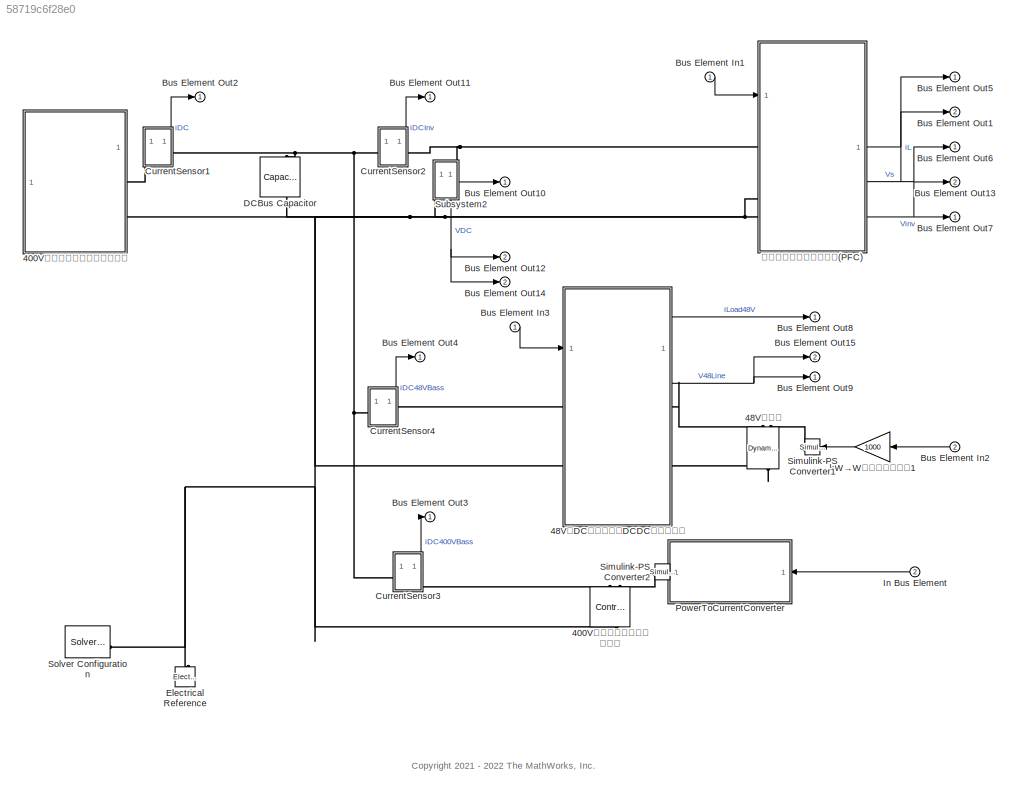
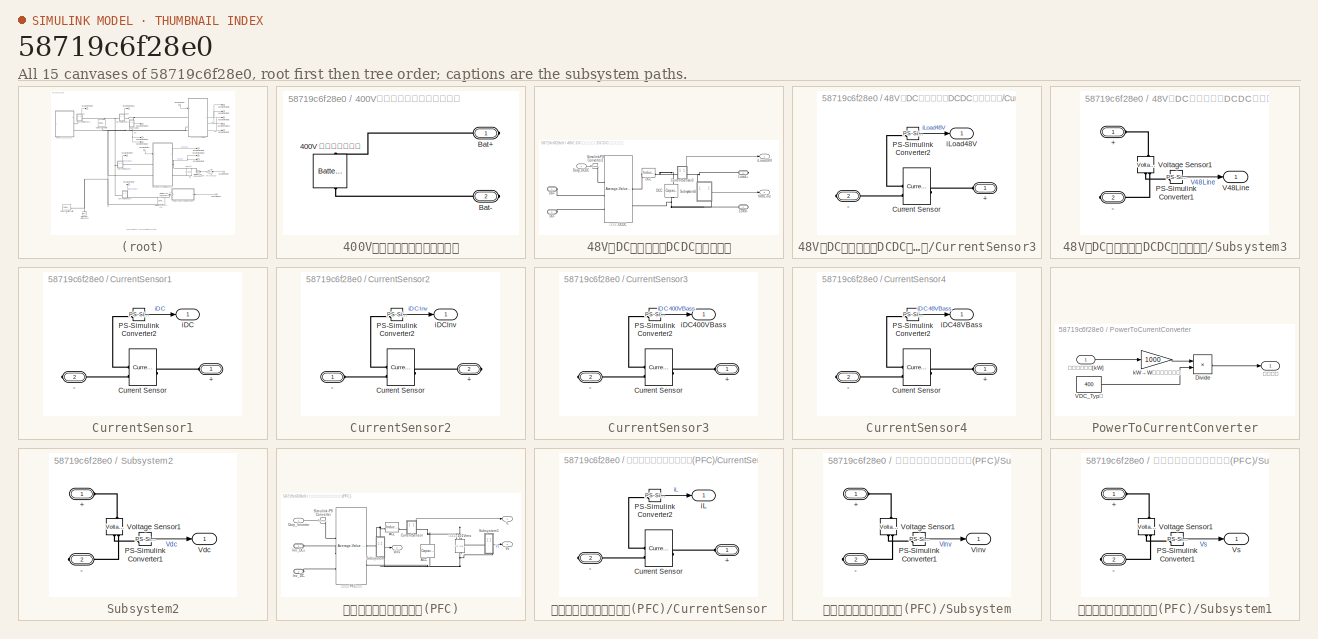
[diagram: thumbnail index - all 15 canvases of the model, root first then tree order]
MODEL slx_58719c6f28e0
KIND model
BLOCK [SubSystem] 400Vリチウムイオンバッテリー
BLOCK [Reference] 400Vリチウムイオンバッテリー/400V 理想特性蓄電池  REF=batteryecm_lib/Battery
  NameLocation = left
  SourceBlock = batteryecm_lib/Battery
  SourceType = Battery
BLOCK [PMIOPort] 400Vリチウムイオンバッテリー/Bat+
  Side = Right
BLOCK [PMIOPort] 400Vリチウムイオンバッテリー/Bat-
  Port = 2
  Side = Right
BLOCK [Reference] 400V系負荷を模擬する 電流源  REF=fl_lib/Electrical/Electrical Sources/Controlled Current
Source
  NameLocation = left
  SourceBlock = fl_lib/Electrical/Electrical Sources/Controlled Current\nSource
  SourceType = Controlled Current\nSource
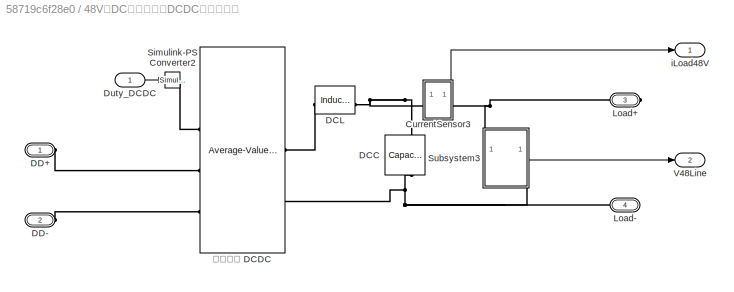
BLOCK [SubSystem] 48V系DC負荷供給用DCDCコンバータ
BLOCK [SubSystem] 48V系DC負荷供給用DCDCコンバータ/CurrentSensor3
  PortSchema = {"entries":[{"content":{"sides":[{"content":{"connectorIds":["LConn1"]},"type":"ConnectorPlacement.EquallySpacedRectSide","uuid":"7286f59e-cee0-499d-832c-cf6f33a1b017"},{"content":{"connectorIds":["RConn1"],"side":"RIGHT"},"type":"ConnectorPlacement.EquallySpacedRectSide","uuid":"6a983281-a6bc-4a57-a5ba-c4da9a8828f4"},{"content":{"connectorIds":["Out1"],"side":"TOP"},"type":"ConnectorPlacement.Equ...<+251ch>  <repeated x6 — deduplicated; at blocks: CurrentSensor3, CurrentSensor1, CurrentSensor2, CurrentSensor4, CurrentSensor>
BLOCK [PMIOPort] 48V系DC負荷供給用DCDCコンバータ/CurrentSensor3/+
  Side = Left
BLOCK [PMIOPort] 48V系DC負荷供給用DCDCコンバータ/CurrentSensor3/-
  Port = 2
  Side = Right
BLOCK [Reference] 48V系DC負荷供給用DCDCコンバータ/CurrentSensor3/Current Sensor  REF=fl_lib/Electrical/Electrical Sensors/Current Sensor
  NameLocation = top
  SourceBlock = fl_lib/Electrical/Electrical Sensors/Current Sensor
  SourceType = Current Sensor
BLOCK [Reference] 48V系DC負荷供給用DCDCコンバータ/CurrentSensor3/PS-Simulink Converter2  REF=nesl_utility/PS-Simulink
Converter
  SourceBlock = nesl_utility/PS-Simulink\nConverter
  SourceType = PS-Simulink\nConverter
BLOCK [Outport] 48V系DC負荷供給用DCDCコンバータ/CurrentSensor3/iLoad48V
BLOCK [Reference] 48V系DC負荷供給用DCDCコンバータ/DCC  REF=ee_lib/Passive/Capacitor
  NameLocation = left
  SourceBlock = ee_lib/Passive/Capacitor
  SourceType = Capacitor
BLOCK [Reference] 48V系DC負荷供給用DCDCコンバータ/DCL  REF=ee_lib/Passive/Inductor
  SourceBlock = ee_lib/Passive/Inductor
  SourceType = Inductor
BLOCK [PMIOPort] 48V系DC負荷供給用DCDCコンバータ/DD+
  Side = Left
BLOCK [PMIOPort] 48V系DC負荷供給用DCDCコンバータ/DD-
  Port = 2
  Side = Left
BLOCK [Inport] 48V系DC負荷供給用DCDCコンバータ/Duty_DCDC
BLOCK [PMIOPort] 48V系DC負荷供給用DCDCコンバータ/Load+
  NameLocation = top
  Port = 3
  Side = Right
BLOCK [PMIOPort] 48V系DC負荷供給用DCDCコンバータ/Load-
  NameLocation = top
  Port = 4
  Side = Right
BLOCK [Reference] 48V系DC負荷供給用DCDCコンバータ/Simulink-PS Converter2  REF=nesl_utility/Simulink-PS
Converter
  SourceBlock = nesl_utility/Simulink-PS\nConverter
  SourceType = Simulink-PS\nConverter
BLOCK [SubSystem] 48V系DC負荷供給用DCDCコンバータ/Subsystem3
  PortSchema = {"entries":[{"content":{"sides":[{"content":{"connectorIds":[]},"type":"ConnectorPlacement.EquallySpacedRectSide","uuid":"7286f59e-cee0-499d-832c-cf6f33a1b017"},{"content":{"connectorIds":["Out1"],"side":"RIGHT"},"type":"ConnectorPlacement.EquallySpacedRectSide","uuid":"6a983281-a6bc-4a57-a5ba-c4da9a8828f4"},{"content":{"connectorIds":["LConn1"],"side":"TOP"},"type":"ConnectorPlacement.EquallySpac...<+395ch>  <repeated x3 — deduplicated; at blocks: Subsystem3, Subsystem, Subsystem1>
BLOCK [PMIOPort] 48V系DC負荷供給用DCDCコンバータ/Subsystem3/+
  Side = Left
BLOCK [PMIOPort] 48V系DC負荷供給用DCDCコンバータ/Subsystem3/-
  NameLocation = top
  Port = 2
  Side = Right
BLOCK [Reference] 48V系DC負荷供給用DCDCコンバータ/Subsystem3/PS-Simulink Converter1  REF=nesl_utility/PS-Simulink
Converter
  SourceBlock = nesl_utility/PS-Simulink\nConverter
  SourceType = PS-Simulink\nConverter
BLOCK [Outport] 48V系DC負荷供給用DCDCコンバータ/Subsystem3/V48Line
BLOCK [Reference] 48V系DC負荷供給用DCDCコンバータ/Subsystem3/Voltage Sensor1  REF=fl_lib/Electrical/Electrical Sensors/Voltage Sensor
  NameLocation = right
  SourceBlock = fl_lib/Electrical/Electrical Sensors/Voltage Sensor
  SourceType = Voltage Sensor
BLOCK [Outport] 48V系DC負荷供給用DCDCコンバータ/V48Line
  Port = 2
BLOCK [Outport] 48V系DC負荷供給用DCDCコンバータ/iLoad48V
BLOCK [Reference] 48V系DC負荷供給用DCDCコンバータ/平均電圧 DCDC  REF=ee_lib/Semiconductors &
Converters/Converters/Average-Value
Chopper
  SourceBlock = ee_lib/Semiconductors &\nConverters/Converters/Average-Value\nChopper
  SourceType = Average-Value\nChopper
BLOCK [Reference] 48V系負荷  REF=ee_lib/Passive/Dynamic Load
  SourceBlock = ee_lib/Passive/Dynamic Load
  SourceType = Dynamic Load
BLOCK [Inport] Bus Element In1
BLOCK [Inport] Bus Element In2
  Port = 2
BLOCK [Inport] Bus Element In3
BLOCK [Outport] Bus Element Out1
  Port = 2
BLOCK [Outport] Bus Element Out10
BLOCK [Outport] Bus Element Out11
BLOCK [Outport] Bus Element Out12
  Port = 2
BLOCK [Outport] Bus Element Out13
  Port = 2
BLOCK [Outport] Bus Element Out14
  Port = 2
BLOCK [Outport] Bus Element Out15
  Port = 2
BLOCK [Outport] Bus Element Out2
BLOCK [Outport] Bus Element Out3
BLOCK [Outport] Bus Element Out4
BLOCK [Outport] Bus Element Out5
BLOCK [Outport] Bus Element Out6
BLOCK [Outport] Bus Element Out7
BLOCK [Outport] Bus Element Out8
BLOCK [Outport] Bus Element Out9
BLOCK [SubSystem] CurrentSensor1
BLOCK [PMIOPort] CurrentSensor1/+
  Side = Left
BLOCK [PMIOPort] CurrentSensor1/-
  Port = 2
  Side = Right
BLOCK [Reference] CurrentSensor1/Current Sensor  REF=fl_lib/Electrical/Electrical Sensors/Current Sensor
  NameLocation = top
  SourceBlock = fl_lib/Electrical/Electrical Sensors/Current Sensor
  SourceType = Current Sensor
BLOCK [Reference] CurrentSensor1/PS-Simulink Converter2  REF=nesl_utility/PS-Simulink
Converter
  SourceBlock = nesl_utility/PS-Simulink\nConverter
  SourceType = PS-Simulink\nConverter
BLOCK [Outport] CurrentSensor1/iDC
BLOCK [SubSystem] CurrentSensor2
BLOCK [PMIOPort] CurrentSensor2/+
  Port = 2
  Side = Right
BLOCK [PMIOPort] CurrentSensor2/-
  Side = Left
BLOCK [Reference] CurrentSensor2/Current Sensor  REF=fl_lib/Electrical/Electrical Sensors/Current Sensor
  NameLocation = top
  SourceBlock = fl_lib/Electrical/Electrical Sensors/Current Sensor
  SourceType = Current Sensor
BLOCK [Reference] CurrentSensor2/PS-Simulink Converter2  REF=nesl_utility/PS-Simulink
Converter
  SourceBlock = nesl_utility/PS-Simulink\nConverter
  SourceType = PS-Simulink\nConverter
BLOCK [Outport] CurrentSensor2/iDCInv
BLOCK [SubSystem] CurrentSensor3
BLOCK [PMIOPort] CurrentSensor3/+
  Side = Left
BLOCK [PMIOPort] CurrentSensor3/-
  Port = 2
  Side = Right
BLOCK [Reference] CurrentSensor3/Current Sensor  REF=fl_lib/Electrical/Electrical Sensors/Current Sensor
  NameLocation = top
  SourceBlock = fl_lib/Electrical/Electrical Sensors/Current Sensor
  SourceType = Current Sensor
BLOCK [Reference] CurrentSensor3/PS-Simulink Converter2  REF=nesl_utility/PS-Simulink
Converter
  SourceBlock = nesl_utility/PS-Simulink\nConverter
  SourceType = PS-Simulink\nConverter
BLOCK [Outport] CurrentSensor3/iDC400VBass
BLOCK [SubSystem] CurrentSensor4
BLOCK [PMIOPort] CurrentSensor4/+
  Side = Left
BLOCK [PMIOPort] CurrentSensor4/-
  Port = 2
  Side = Right
BLOCK [Reference] CurrentSensor4/Current Sensor  REF=fl_lib/Electrical/Electrical Sensors/Current Sensor
  NameLocation = top
  SourceBlock = fl_lib/Electrical/Electrical Sensors/Current Sensor
  SourceType = Current Sensor
BLOCK [Reference] CurrentSensor4/PS-Simulink Converter2  REF=nesl_utility/PS-Simulink
Converter
  SourceBlock = nesl_utility/PS-Simulink\nConverter
  SourceType = PS-Simulink\nConverter
BLOCK [Outport] CurrentSensor4/iDC48VBass
BLOCK [Reference] DCBus Capacitor  REF=ee_lib/Passive/Capacitor
  NameLocation = left
  SourceBlock = ee_lib/Passive/Capacitor
  SourceType = Capacitor
BLOCK [Reference] Electrical Reference  REF=fl_lib/Electrical/Electrical Elements/Electrical Reference
  SourceBlock = fl_lib/Electrical/Electrical Elements/Electrical Reference
  SourceType = Electrical Reference
BLOCK [Inport] In Bus Element
  Port = 2
BLOCK [SubSystem] PowerToCurrentConverter
BLOCK [Product] PowerToCurrentConverter/Divide
  Inputs = */
BLOCK [Constant] PowerToCurrentConverter/VDC_Typ値
  Value = 400
BLOCK [Gain] PowerToCurrentConverter/kW→W単位変換ゲイン
  Gain = 1000
  NameLocation = top
BLOCK [Inport] PowerToCurrentConverter/消費負荷電力[kW]
  NameLocation = top
BLOCK [Outport] PowerToCurrentConverter/負荷電流
  NameLocation = top
BLOCK [Reference] Simulink-PS Converter1  REF=nesl_utility/Simulink-PS
Converter
  NameLocation = top
  SourceBlock = nesl_utility/Simulink-PS\nConverter
  SourceType = Simulink-PS\nConverter
BLOCK [Reference] Simulink-PS Converter2  REF=nesl_utility/Simulink-PS
Converter
  NameLocation = top
  SourceBlock = nesl_utility/Simulink-PS\nConverter
  SourceType = Simulink-PS\nConverter
BLOCK [Reference] Solver Configuration  REF=nesl_utility/Solver
Configuration
  SourceBlock = nesl_utility/Solver\nConfiguration
  SourceType = Solver\nConfiguration
BLOCK [SubSystem] Subsystem2
  PortSchema = {"entries":[{"content":{"sides":[{"content":{"connectorIds":["Out1"]},"type":"ConnectorPlacement.EquallySpacedRectSide","uuid":"7286f59e-cee0-499d-832c-cf6f33a1b017"},{"content":{"connectorIds":[],"side":"RIGHT"},"type":"ConnectorPlacement.EquallySpacedRectSide","uuid":"6a983281-a6bc-4a57-a5ba-c4da9a8828f4"},{"content":{"connectorIds":["LConn1"],"side":"TOP"},"type":"ConnectorPlacement.EquallySpac...<+395ch>
BLOCK [PMIOPort] Subsystem2/+
  Side = Left
BLOCK [PMIOPort] Subsystem2/-
  NameLocation = top
  Port = 2
  Side = Right
BLOCK [Reference] Subsystem2/PS-Simulink Converter1  REF=nesl_utility/PS-Simulink
Converter
  SourceBlock = nesl_utility/PS-Simulink\nConverter
  SourceType = PS-Simulink\nConverter
BLOCK [Outport] Subsystem2/Vdc
BLOCK [Reference] Subsystem2/Voltage Sensor1  REF=fl_lib/Electrical/Electrical Sensors/Voltage Sensor
  NameLocation = right
  SourceBlock = fl_lib/Electrical/Electrical Sensors/Voltage Sensor
  SourceType = Voltage Sensor
BLOCK [Gain] kW→W単位変換ゲイン1
  Gain = 1000
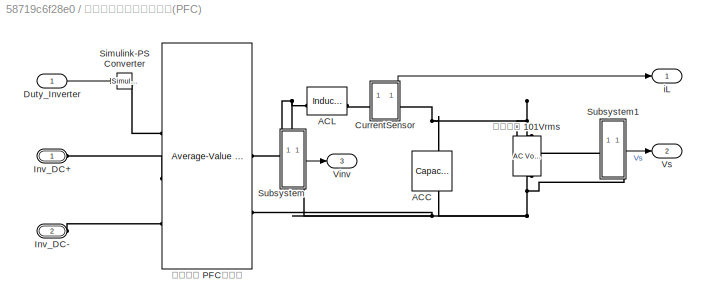
BLOCK [SubSystem] オンボードチャージャー(PFC)
BLOCK [Reference] オンボードチャージャー(PFC)/ACC  REF=ee_lib/Passive/Capacitor
  NameLocation = right
  SourceBlock = ee_lib/Passive/Capacitor
  SourceType = Capacitor
BLOCK [Reference] オンボードチャージャー(PFC)/ACL  REF=ee_lib/Passive/Inductor
  SourceBlock = ee_lib/Passive/Inductor
  SourceType = Inductor
BLOCK [SubSystem] オンボードチャージャー(PFC)/CurrentSensor
BLOCK [PMIOPort] オンボードチャージャー(PFC)/CurrentSensor/+
  Side = Left
BLOCK [PMIOPort] オンボードチャージャー(PFC)/CurrentSensor/-
  Port = 2
  Side = Right
BLOCK [Reference] オンボードチャージャー(PFC)/CurrentSensor/Current Sensor  REF=fl_lib/Electrical/Electrical Sensors/Current Sensor
  NameLocation = top
  SourceBlock = fl_lib/Electrical/Electrical Sensors/Current Sensor
  SourceType = Current Sensor
BLOCK [Reference] オンボードチャージャー(PFC)/CurrentSensor/PS-Simulink Converter2  REF=nesl_utility/PS-Simulink
Converter
  SourceBlock = nesl_utility/PS-Simulink\nConverter
  SourceType = PS-Simulink\nConverter
BLOCK [Outport] オンボードチャージャー(PFC)/CurrentSensor/iL
BLOCK [Inport] オンボードチャージャー(PFC)/Duty_Inverter
BLOCK [PMIOPort] オンボードチャージャー(PFC)/Inv_DC+
  Side = Left
BLOCK [PMIOPort] オンボードチャージャー(PFC)/Inv_DC-
  Port = 2
  Side = Left
BLOCK [Reference] オンボードチャージャー(PFC)/Simulink-PS Converter  REF=nesl_utility/Simulink-PS
Converter
  SourceBlock = nesl_utility/Simulink-PS\nConverter
  SourceType = Simulink-PS\nConverter
BLOCK [SubSystem] オンボードチャージャー(PFC)/Subsystem
BLOCK [PMIOPort] オンボードチャージャー(PFC)/Subsystem/+
  Side = Left
BLOCK [PMIOPort] オンボードチャージャー(PFC)/Subsystem/-
  NameLocation = top
  Port = 2
  Side = Right
BLOCK [Reference] オンボードチャージャー(PFC)/Subsystem/PS-Simulink Converter1  REF=nesl_utility/PS-Simulink
Converter
  SourceBlock = nesl_utility/PS-Simulink\nConverter
  SourceType = PS-Simulink\nConverter
BLOCK [Outport] オンボードチャージャー(PFC)/Subsystem/Vinv
BLOCK [Reference] オンボードチャージャー(PFC)/Subsystem/Voltage Sensor1  REF=fl_lib/Electrical/Electrical Sensors/Voltage Sensor
  NameLocation = right
  SourceBlock = fl_lib/Electrical/Electrical Sensors/Voltage Sensor
  SourceType = Voltage Sensor
BLOCK [SubSystem] オンボードチャージャー(PFC)/Subsystem1
BLOCK [PMIOPort] オンボードチャージャー(PFC)/Subsystem1/+
  Side = Left
BLOCK [PMIOPort] オンボードチャージャー(PFC)/Subsystem1/-
  NameLocation = top
  Port = 2
  Side = Right
BLOCK [Reference] オンボードチャージャー(PFC)/Subsystem1/PS-Simulink Converter1  REF=nesl_utility/PS-Simulink
Converter
  SourceBlock = nesl_utility/PS-Simulink\nConverter
  SourceType = PS-Simulink\nConverter
BLOCK [Reference] オンボードチャージャー(PFC)/Subsystem1/Voltage Sensor1  REF=fl_lib/Electrical/Electrical Sensors/Voltage Sensor
  NameLocation = right
  SourceBlock = fl_lib/Electrical/Electrical Sensors/Voltage Sensor
  SourceType = Voltage Sensor
BLOCK [Outport] オンボードチャージャー(PFC)/Subsystem1/Vs
BLOCK [Outport] オンボードチャージャー(PFC)/Vinv
  Port = 3
BLOCK [Outport] オンボードチャージャー(PFC)/Vs
  Port = 2
BLOCK [Outport] オンボードチャージャー(PFC)/iL
BLOCK [Reference] オンボードチャージャー(PFC)/平均電圧 PFCモデル  REF=ee_lib/Semiconductors &
Converters/Converters/Average-Value
Chopper
  SourceBlock = ee_lib/Semiconductors &\nConverters/Converters/Average-Value\nChopper
  SourceType = Average-Value\nChopper
BLOCK [Reference] オンボードチャージャー(PFC)/系統電圧 101Vrms  REF=fl_lib/Electrical/Electrical Sources/AC Voltage Source
  NameLocation = right
  SourceBlock = fl_lib/Electrical/Electrical Sources/AC Voltage Source
  SourceType = AC Voltage Source
ANNOTATION (root): <copyright redacted>
LINE 48V系DC負荷供給用DCDCコンバータ/CurrentSensor3/PS-Simulink Converter2:1 -> 48V系DC負荷供給用DCDCコンバータ/CurrentSensor3/iLoad48V:1
LINE 48V系DC負荷供給用DCDCコンバータ/CurrentSensor3:1 -> 48V系DC負荷供給用DCDCコンバータ/iLoad48V:1
LINE 48V系DC負荷供給用DCDCコンバータ/Duty_DCDC:1 -> 48V系DC負荷供給用DCDCコンバータ/Simulink-PS Converter2:1
LINE 48V系DC負荷供給用DCDCコンバータ/Subsystem3/PS-Simulink Converter1:1 -> 48V系DC負荷供給用DCDCコンバータ/Subsystem3/V48Line:1
LINE 48V系DC負荷供給用DCDCコンバータ/Subsystem3:1 -> 48V系DC負荷供給用DCDCコンバータ/V48Line:1
LINE 48V系DC負荷供給用DCDCコンバータ:1 -> Bus Element Out8:1
NET 48V系DC負荷供給用DCDCコンバータ:2 -> Bus Element Out15:1, Bus Element Out9:1
LINE Bus Element In1:1 -> オンボードチャージャー(PFC):1
LINE Bus Element In2:1 -> kW→W単位変換ゲイン1:1
LINE Bus Element In3:1 -> 48V系DC負荷供給用DCDCコンバータ:1
LINE CurrentSensor1/PS-Simulink Converter2:1 -> CurrentSensor1/iDC:1
LINE CurrentSensor1:1 -> Bus Element Out2:1
LINE CurrentSensor2/PS-Simulink Converter2:1 -> CurrentSensor2/iDCInv:1
LINE CurrentSensor2:1 -> Bus Element Out11:1
LINE CurrentSensor3/PS-Simulink Converter2:1 -> CurrentSensor3/iDC400VBass:1
LINE CurrentSensor3:1 -> Bus Element Out3:1
LINE CurrentSensor4/PS-Simulink Converter2:1 -> CurrentSensor4/iDC48VBass:1
LINE CurrentSensor4:1 -> Bus Element Out4:1
LINE In Bus Element:1 -> PowerToCurrentConverter:1
LINE PowerToCurrentConverter/Divide:1 -> PowerToCurrentConverter/負荷電流:1
LINE PowerToCurrentConverter/VDC_Typ値:1 -> PowerToCurrentConverter/Divide:2
LINE PowerToCurrentConverter/kW→W単位変換ゲイン:1 -> PowerToCurrentConverter/Divide:1
LINE PowerToCurrentConverter/消費負荷電力[kW]:1 -> PowerToCurrentConverter/kW→W単位変換ゲイン:1
LINE PowerToCurrentConverter:1 -> Simulink-PS Converter2:1
LINE Subsystem2/PS-Simulink Converter1:1 -> Subsystem2/Vdc:1
NET Subsystem2:1 -> Bus Element Out10:1, Bus Element Out12:1, Bus Element Out14:1
LINE kW→W単位変換ゲイン1:1 -> Simulink-PS Converter1:1
LINE オンボードチャージャー(PFC)/CurrentSensor/PS-Simulink Converter2:1 -> オンボードチャージャー(PFC)/CurrentSensor/iL:1
LINE オンボードチャージャー(PFC)/CurrentSensor:1 -> オンボードチャージャー(PFC)/iL:1
LINE オンボードチャージャー(PFC)/Duty_Inverter:1 -> オンボードチャージャー(PFC)/Simulink-PS Converter:1
LINE オンボードチャージャー(PFC)/Subsystem/PS-Simulink Converter1:1 -> オンボードチャージャー(PFC)/Subsystem/Vinv:1
LINE オンボードチャージャー(PFC)/Subsystem1/PS-Simulink Converter1:1 -> オンボードチャージャー(PFC)/Subsystem1/Vs:1
LINE オンボードチャージャー(PFC)/Subsystem1:1 -> オンボードチャージャー(PFC)/Vs:1
LINE オンボードチャージャー(PFC)/Subsystem:1 -> オンボードチャージャー(PFC)/Vinv:1
NET オンボードチャージャー(PFC):1 -> Bus Element Out1:1, Bus Element Out5:1
NET オンボードチャージャー(PFC):2 -> Bus Element Out13:1, Bus Element Out6:1
LINE オンボードチャージャー(PFC):3 -> Bus Element Out7:1
PLINE 400Vリチウムイオンバッテリー/400V 理想特性蓄電池:LConn1 -- 400Vリチウムイオンバッテリー/Bat+:RConn1
PLINE 400Vリチウムイオンバッテリー/400V 理想特性蓄電池:RConn1 -- 400Vリチウムイオンバッテリー/Bat-:RConn1
PLINE 400Vリチウムイオンバッテリー:RConn1 -- CurrentSensor1:LConn1
PNET net1: 400Vリチウムイオンバッテリー:RConn2 -- 400V系負荷を模擬する 電流源:LConn1 -- 48V系DC負荷供給用DCDCコンバータ:LConn2 -- DCBus Capacitor:RConn1 -- Electrical Reference:LConn1 -- Solver Configuration:RConn1 -- Subsystem2:RConn1 -- オンボードチャージャー(PFC):LConn2
PLINE 400V系負荷を模擬する 電流源:RConn1 -- Simulink-PS Converter2:RConn1
PLINE 400V系負荷を模擬する 電流源:RConn2 -- CurrentSensor3:RConn1
PLINE 48V系DC負荷供給用DCDCコンバータ/CurrentSensor3/+:RConn1 -- 48V系DC負荷供給用DCDCコンバータ/CurrentSensor3/Current Sensor:LConn1
PLINE 48V系DC負荷供給用DCDCコンバータ/CurrentSensor3/-:RConn1 -- 48V系DC負荷供給用DCDCコンバータ/CurrentSensor3/Current Sensor:RConn2
PLINE 48V系DC負荷供給用DCDCコンバータ/CurrentSensor3/Current Sensor:RConn1 -- 48V系DC負荷供給用DCDCコンバータ/CurrentSensor3/PS-Simulink Converter2:LConn1
PNET net2: 48V系DC負荷供給用DCDCコンバータ/CurrentSensor3:LConn1 -- 48V系DC負荷供給用DCDCコンバータ/DCC:LConn1 -- 48V系DC負荷供給用DCDCコンバータ/DCL:RConn1
PNET net3: 48V系DC負荷供給用DCDCコンバータ/CurrentSensor3:RConn1 -- 48V系DC負荷供給用DCDCコンバータ/Load+:RConn1 -- 48V系DC負荷供給用DCDCコンバータ/Subsystem3:LConn1
PNET net4: 48V系DC負荷供給用DCDCコンバータ/DCC:RConn1 -- 48V系DC負荷供給用DCDCコンバータ/Load-:RConn1 -- 48V系DC負荷供給用DCDCコンバータ/Subsystem3:RConn1 -- 48V系DC負荷供給用DCDCコンバータ/平均電圧 DCDC:RConn2
PLINE 48V系DC負荷供給用DCDCコンバータ/DCL:LConn1 -- 48V系DC負荷供給用DCDCコンバータ/平均電圧 DCDC:RConn1
PLINE 48V系DC負荷供給用DCDCコンバータ/DD+:RConn1 -- 48V系DC負荷供給用DCDCコンバータ/平均電圧 DCDC:LConn2
PLINE 48V系DC負荷供給用DCDCコンバータ/DD-:RConn1 -- 48V系DC負荷供給用DCDCコンバータ/平均電圧 DCDC:LConn3
PLINE 48V系DC負荷供給用DCDCコンバータ/Simulink-PS Converter2:RConn1 -- 48V系DC負荷供給用DCDCコンバータ/平均電圧 DCDC:LConn1
PLINE 48V系DC負荷供給用DCDCコンバータ/Subsystem3/+:RConn1 -- 48V系DC負荷供給用DCDCコンバータ/Subsystem3/Voltage Sensor1:LConn1
PLINE 48V系DC負荷供給用DCDCコンバータ/Subsystem3/-:RConn1 -- 48V系DC負荷供給用DCDCコンバータ/Subsystem3/Voltage Sensor1:RConn2
PLINE 48V系DC負荷供給用DCDCコンバータ/Subsystem3/PS-Simulink Converter1:LConn1 -- 48V系DC負荷供給用DCDCコンバータ/Subsystem3/Voltage Sensor1:RConn1
PLINE 48V系DC負荷供給用DCDCコンバータ:LConn1 -- CurrentSensor4:RConn1
PLINE 48V系DC負荷供給用DCDCコンバータ:RConn1 -- 48V系負荷:LConn1
PLINE 48V系DC負荷供給用DCDCコンバータ:RConn2 -- 48V系負荷:RConn1
PLINE 48V系負荷:LConn2 -- Simulink-PS Converter1:RConn1
PLINE CurrentSensor1/+:RConn1 -- CurrentSensor1/Current Sensor:LConn1
PLINE CurrentSensor1/-:RConn1 -- CurrentSensor1/Current Sensor:RConn2
PLINE CurrentSensor1/Current Sensor:RConn1 -- CurrentSensor1/PS-Simulink Converter2:LConn1
PNET net5: CurrentSensor1:RConn1 -- CurrentSensor2:LConn1 -- CurrentSensor3:LConn1 -- CurrentSensor4:LConn1 -- DCBus Capacitor:LConn1
PLINE CurrentSensor2/+:RConn1 -- CurrentSensor2/Current Sensor:LConn1
PLINE CurrentSensor2/-:RConn1 -- CurrentSensor2/Current Sensor:RConn2
PLINE CurrentSensor2/Current Sensor:RConn1 -- CurrentSensor2/PS-Simulink Converter2:LConn1
PNET net6: CurrentSensor2:RConn1 -- Subsystem2:LConn1 -- オンボードチャージャー(PFC):LConn1
PLINE CurrentSensor3/+:RConn1 -- CurrentSensor3/Current Sensor:LConn1
PLINE CurrentSensor3/-:RConn1 -- CurrentSensor3/Current Sensor:RConn2
PLINE CurrentSensor3/Current Sensor:RConn1 -- CurrentSensor3/PS-Simulink Converter2:LConn1
PLINE CurrentSensor4/+:RConn1 -- CurrentSensor4/Current Sensor:LConn1
PLINE CurrentSensor4/-:RConn1 -- CurrentSensor4/Current Sensor:RConn2
PLINE CurrentSensor4/Current Sensor:RConn1 -- CurrentSensor4/PS-Simulink Converter2:LConn1
PLINE Subsystem2/+:RConn1 -- Subsystem2/Voltage Sensor1:LConn1
PLINE Subsystem2/-:RConn1 -- Subsystem2/Voltage Sensor1:RConn2
PLINE Subsystem2/PS-Simulink Converter1:LConn1 -- Subsystem2/Voltage Sensor1:RConn1
PNET net7: オンボードチャージャー(PFC)/ACC:LConn1 -- オンボードチャージャー(PFC)/CurrentSensor:RConn1 -- オンボードチャージャー(PFC)/Subsystem1:LConn1 -- オンボードチャージャー(PFC)/系統電圧 101Vrms:LConn1
PNET net8: オンボードチャージャー(PFC)/ACC:RConn1 -- オンボードチャージャー(PFC)/Subsystem1:RConn1 -- オンボードチャージャー(PFC)/Subsystem:RConn1 -- オンボードチャージャー(PFC)/平均電圧 PFCモデル:RConn2 -- オンボードチャージャー(PFC)/系統電圧 101Vrms:RConn1
PNET net9: オンボードチャージャー(PFC)/ACL:LConn1 -- オンボードチャージャー(PFC)/Subsystem:LConn1 -- オンボードチャージャー(PFC)/平均電圧 PFCモデル:RConn1
PLINE オンボードチャージャー(PFC)/ACL:RConn1 -- オンボードチャージャー(PFC)/CurrentSensor:LConn1
PLINE オンボードチャージャー(PFC)/CurrentSensor/+:RConn1 -- オンボードチャージャー(PFC)/CurrentSensor/Current Sensor:LConn1
PLINE オンボードチャージャー(PFC)/CurrentSensor/-:RConn1 -- オンボードチャージャー(PFC)/CurrentSensor/Current Sensor:RConn2
PLINE オンボードチャージャー(PFC)/CurrentSensor/Current Sensor:RConn1 -- オンボードチャージャー(PFC)/CurrentSensor/PS-Simulink Converter2:LConn1
PLINE オンボードチャージャー(PFC)/Inv_DC+:RConn1 -- オンボードチャージャー(PFC)/平均電圧 PFCモデル:LConn2
PLINE オンボードチャージャー(PFC)/Inv_DC-:RConn1 -- オンボードチャージャー(PFC)/平均電圧 PFCモデル:LConn3
PLINE オンボードチャージャー(PFC)/Simulink-PS Converter:RConn1 -- オンボードチャージャー(PFC)/平均電圧 PFCモデル:LConn1
PLINE オンボードチャージャー(PFC)/Subsystem/+:RConn1 -- オンボードチャージャー(PFC)/Subsystem/Voltage Sensor1:LConn1
PLINE オンボードチャージャー(PFC)/Subsystem/-:RConn1 -- オンボードチャージャー(PFC)/Subsystem/Voltage Sensor1:RConn2
PLINE オンボードチャージャー(PFC)/Subsystem/PS-Simulink Converter1:LConn1 -- オンボードチャージャー(PFC)/Subsystem/Voltage Sensor1:RConn1
PLINE オンボードチャージャー(PFC)/Subsystem1/+:RConn1 -- オンボードチャージャー(PFC)/Subsystem1/Voltage Sensor1:LConn1
PLINE オンボードチャージャー(PFC)/Subsystem1/-:RConn1 -- オンボードチャージャー(PFC)/Subsystem1/Voltage Sensor1:RConn2
PLINE オンボードチャージャー(PFC)/Subsystem1/PS-Simulink Converter1:LConn1 -- オンボードチャージャー(PFC)/Subsystem1/Voltage Sensor1:RConn1
note: NET lines group one-source signal fan-out (src -> all destinations, sorted); 1:1 wires keep LINE; PNET lines group multi-terminal physical nets as a canonical sorted terminal list (undirected conserving connections); 2-terminal nets keep the pairwise PLINE form
